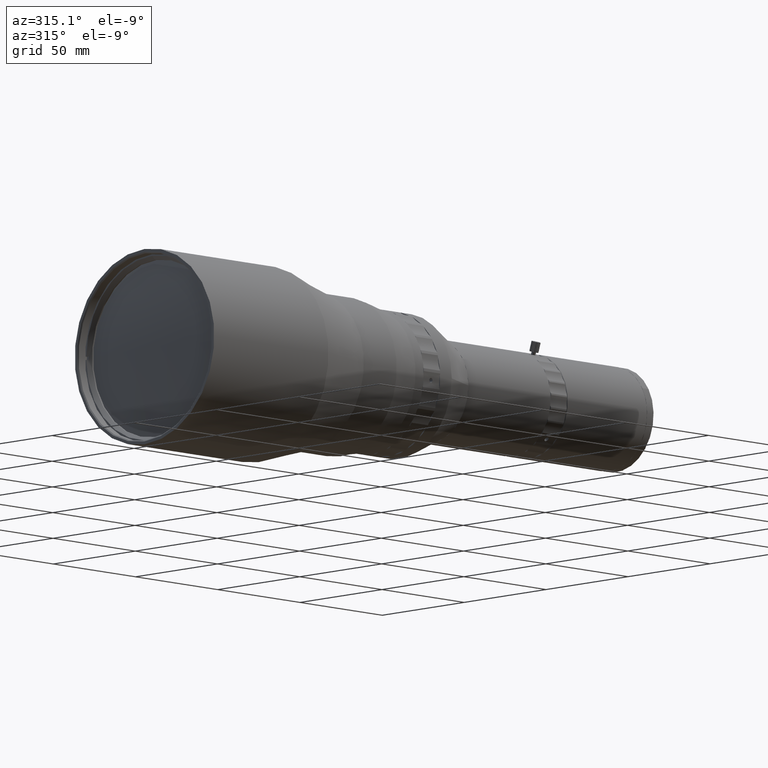
[diagram: clean part render]
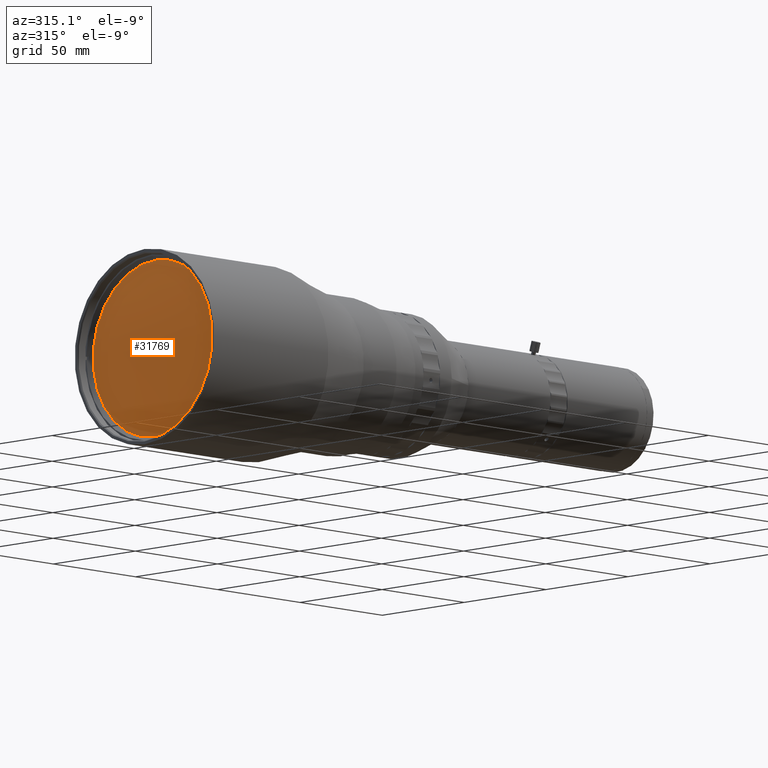
[diagram: same view with one face highlighted and labeled with its STEP entity id]
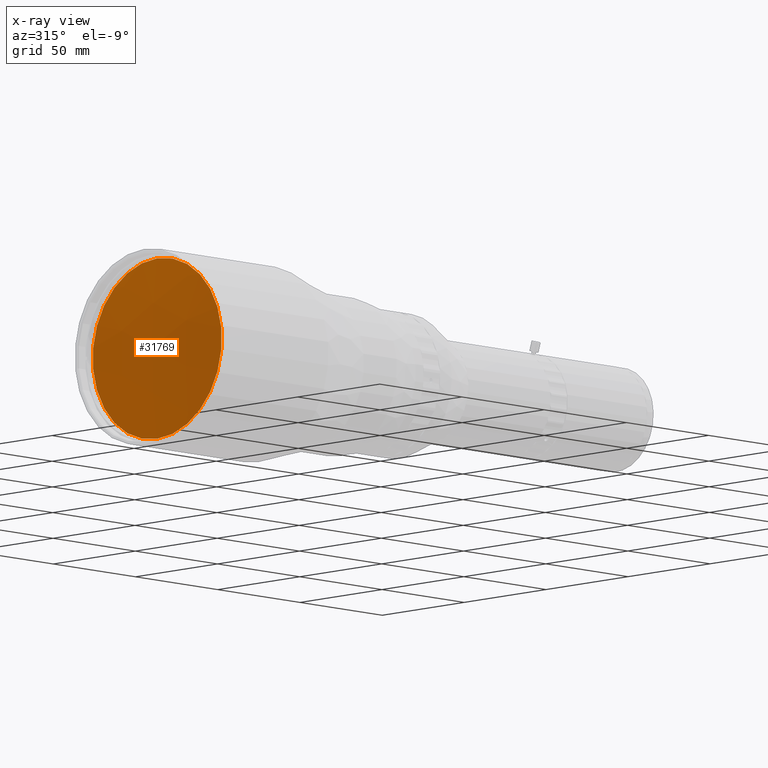
[diagram: x-ray of the same camera — body ghosted, the highlighted face saturated]
A machine part, auxiliary view. The second image highlights one B-rep face of the part: STEP entity #31769.
The next image is the same camera in x-ray: the body ghosted, the highlighted face saturated — about 0% of this face is hidden behind the body in this view.
In plain terms, the highlighted spherical surface has radius 266.722 mm.
Its self-contained STEP definition (entity closure, byte-faithful):
#7476 = FACE_OUTER_BOUND ( 'NONE', #8646, .T. ) ;
#8470 = CARTESIAN_POINT ( 'NONE',  ( -75.86738187093891383, 10.19269740323192330, 115.0914204524571858 ) ) ;
#8532 = CIRCLE ( 'NONE', #35164, 39.35857950842807895 ) ;
#8646 = EDGE_LOOP ( 'NONE', ( #20526 ) ) ;
#11381 = DIRECTION ( 'NONE',  ( -0.1498278809447511073, 0.9887120946421186218, 5.217486045585531441E-16 ) ) ;
#11650 = DIRECTION ( 'NONE',  ( -0.9887120946421186218, -0.1498278809447511073, 3.434039919150856020E-15 ) ) ;
#12122 = DIRECTION ( 'NONE',  ( -1.000000000000000000, -0.000000000000000000, -0.000000000000000000 ) ) ;
#12914 = VERTEX_POINT ( 'NONE', #8470 ) ;
#20526 = ORIENTED_EDGE ( 'NONE', *, *, #46036, .T. ) ;
#31769 = ADVANCED_FACE ( 'NONE', ( #7476 ), #32479, .T. ) ;
#32479 = SPHERICAL_SURFACE ( 'NONE', #49476, 266.7219999999998663 ) ;
#35164 = AXIS2_PLACEMENT_3D ( 'NONE', #37934, #12122, #45707 ) ;
#37934 = CARTESIAN_POINT ( 'NONE',  ( -75.86738187093891383, 10.19269740323192330, 154.4499999608852647 ) ) ;
#45707 = DIRECTION ( 'NONE',  ( 0.000000000000000000, 0.000000000000000000, -1.000000000000000000 ) ) ;
#46036 = EDGE_CURVE ( 'NONE', #12914, #12914, #8532, .T. ) ;
#49415 = CARTESIAN_POINT ( 'NONE',  ( 187.9346793474668118, 10.19269740323199613, 154.4499999608946155 ) ) ;
#49476 = AXIS2_PLACEMENT_3D ( 'NONE', #49415, #11381, #11650 ) ;